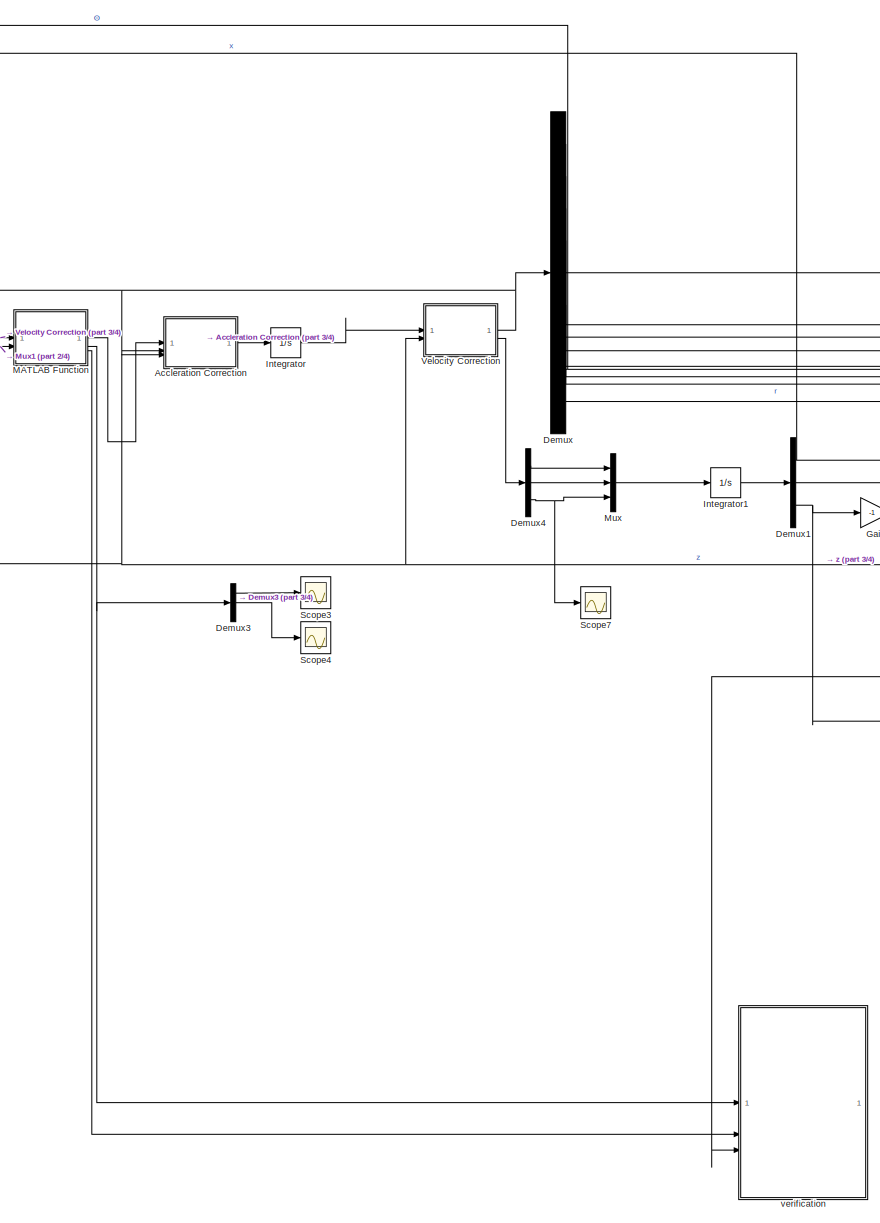
[diagram: root canvas - part 1/4, center side, full height]
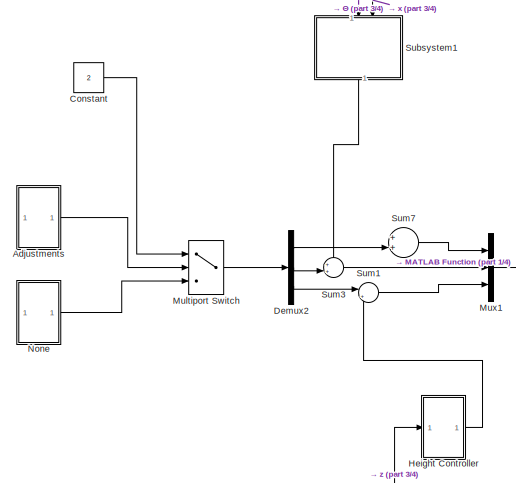
[diagram: root canvas - part 2/4, top left region]
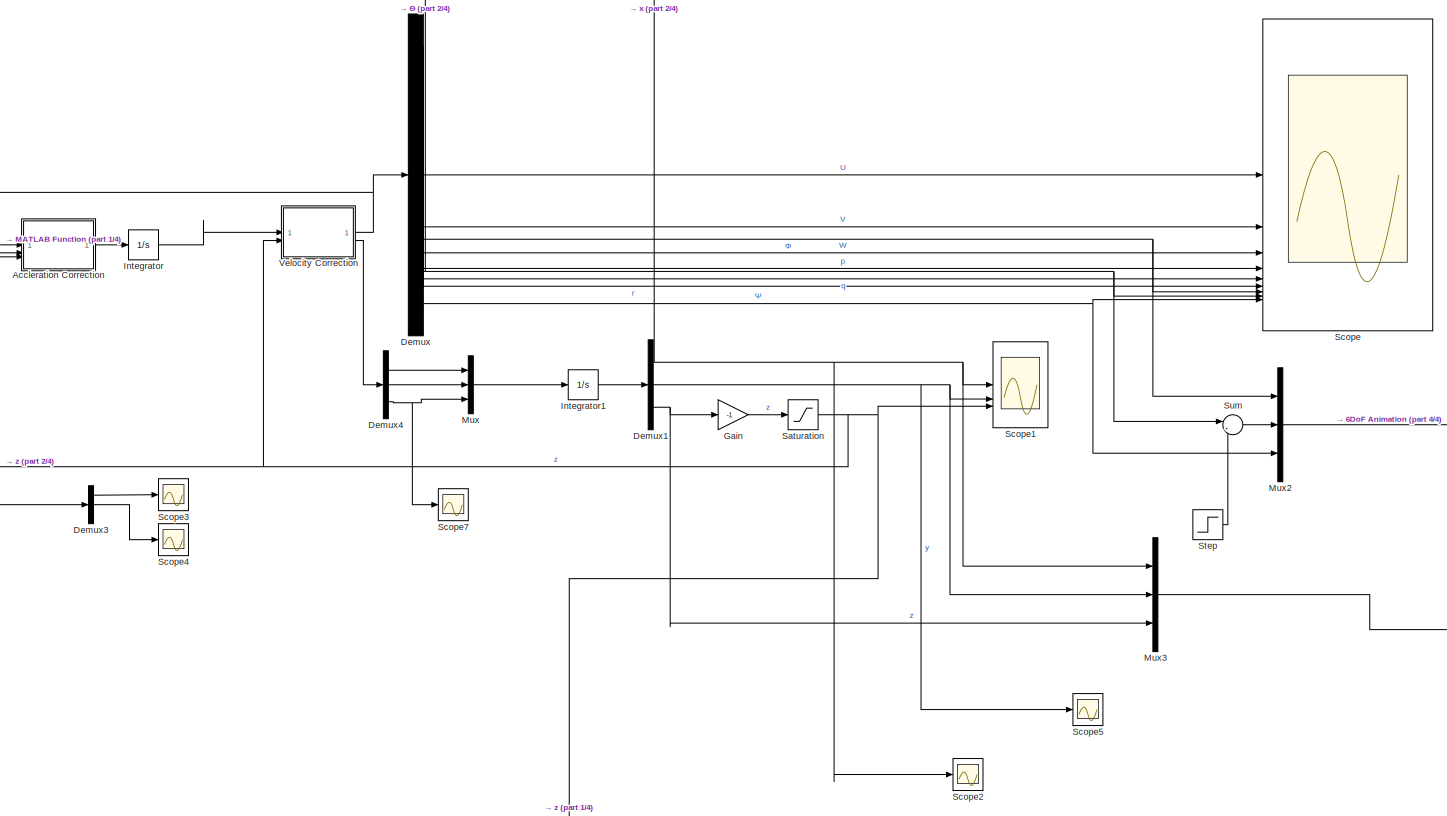
[diagram: root canvas - part 3/4, central region]
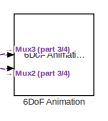
[diagram: root canvas - part 4/4, middle right region]
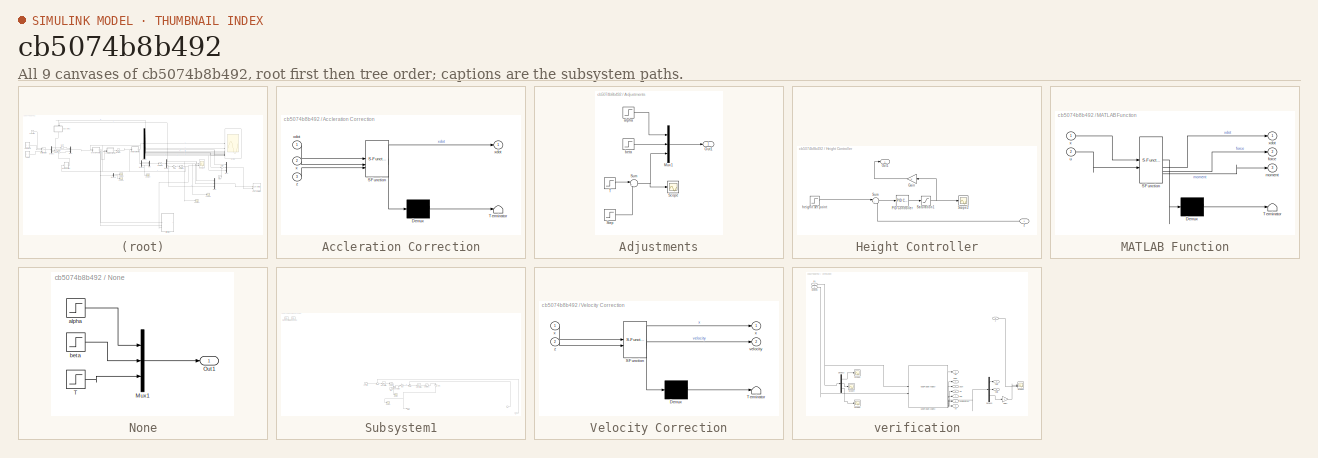
[diagram: thumbnail index - all 9 canvases of the model, root first then tree order]
MODEL slx_cb5074b8b492
KIND model
CONFIG AbsTol = auto
CONFIG EnableMultiTasking = off
CONFIG FixedStep = auto
CONFIG MaxStep = auto
CONFIG MinStep = auto
CONFIG RelTol = 1e-3
CONFIG SampleTimeConstraint = Unconstrained
CONFIG SolverName = VariableStepAuto
CONFIG StartTime = 0.0
CONFIG StopTime = 400
BLOCK [Reference] 6DoF Animation  REF=aerolibanim/6DoF Animation
  SourceBlock = aerolibanim/6DoF Animation
  SourceType = 6DoF_Animation
BLOCK [SubSystem] Accleration Correction
  ErrorFcn = Stateflow.Translate.translate
  PermitHierarchicalResolution = ExplicitOnly
  SFBlockType = MATLAB Function
  TreatAsAtomicUnit = on
BLOCK [Demux] Accleration Correction/ Demux 
  Outputs = 1
BLOCK [S-Function] Accleration Correction/ SFunction 
  EnableBusSupport = on
  FunctionName = sf_sfun
  PortCounts = [3 2]
  SFcnIsStateOwnerBlock = off
  SFunctionDeploymentMode = off
  Tag = Stateflow S-Function 1
BLOCK [Terminator] Accleration Correction/ Terminator 
BLOCK [Inport] Accleration Correction/x
  Port = 2
BLOCK [Outport] Accleration Correction/xdot
BLOCK [Inport] Accleration Correction/xdot 
BLOCK [Inport] Accleration Correction/z
  Port = 3
BLOCK [SubSystem] Adjustments
BLOCK [Mux] Adjustments/Mux1
  DisplayOption = bar
  Inputs = 3
BLOCK [Outport] Adjustments/Out1
BLOCK [Scope] Adjustments/Scope
  Floating = off
  NumInputPorts = 1
  ScopeSpecificationString = Simulink.scopes.TimeScopeBlockCfg('CurrentConfiguration', extmgr.ConfigurationSet(extmgr.Configuration('Core','General UI',true),extmgr.Configuration('Core','Source UI',true),extmgr.Configuration('Sources','WiredSimulink',true,'DataLoggingVariableName','ScopeData1'),extmgr.Configuration('Visuals','Time Domain',true,'SerializedDisplays',{struct('MinYLimReal','-187.5','MaxYLimReal','1687.5','YLabelR...<+1424ch>
BLOCK [Step] Adjustments/Step
  After = -1500
  SampleTime = 0
  Time = 5
BLOCK [Sum] Adjustments/Sum
  Inputs = |++
BLOCK [Step] Adjustments/T
  After = 1500
  SampleTime = 0
  Time = 0
BLOCK [Step] Adjustments/alpha
  After = 0
  SampleTime = 0
  Time = 0
BLOCK [Step] Adjustments/beta
  After = pi/2.001
  SampleTime = 0
  Time = 0
BLOCK [Constant] Constant
  Value = 2
BLOCK [Demux] Demux
  Outputs = 9
BLOCK [Demux] Demux1
  Outputs = 3
BLOCK [Demux] Demux2
  Outputs = 3
BLOCK [Demux] Demux3
  Outputs = 3
BLOCK [Demux] Demux4
  Outputs = 3
BLOCK [Gain] Gain
  Gain = -1
BLOCK [SubSystem] Height Controller
BLOCK [Gain] Height Controller/Gain
  NameLocation = top
BLOCK [Outport] Height Controller/Out1
BLOCK [Reference] Height Controller/PID Controller  REF=slpidlib/PID Controller
  LibrarySourceBlock = simulink/Continuous/PID Controller
  SourceBlock = slpidlib/PID Controller
  SourceType = PID 1dof
BLOCK [Saturate] Height Controller/Saturation1
  LowerLimit = 0
  UpperLimit = 1500
BLOCK [Scope] Height Controller/Scope2
  Floating = off
  NumInputPorts = 1
  ScopeSpecificationString = Simulink.scopes.TimeScopeBlockCfg('CurrentConfiguration', extmgr.ConfigurationSet(extmgr.Configuration('Core','General UI',true),extmgr.Configuration('Core','Source UI',true),extmgr.Configuration('Sources','WiredSimulink',true,'DataLoggingVariableName','ScopeData1'),extmgr.Configuration('Visuals','Time Domain',true,'SerializedDisplays',{struct('MinYLimReal','-181.875','MaxYLimReal','1686.875','YLa...<+1444ch>
BLOCK [Sum] Height Controller/Sum
  Inputs = |+-
BLOCK [Step] Height Controller/heighit set point
  After = 100
  SampleTime = 0
BLOCK [Inport] Height Controller/z
BLOCK [Integrator] Integrator
  InitialCondition = [0;0;0;0;0;0;0;0;0]
BLOCK [Integrator] Integrator1
  InitialCondition = [0;0;0]
BLOCK [SubSystem] MATLAB Function
  ErrorFcn = Stateflow.Translate.translate
  PermitHierarchicalResolution = ExplicitOnly
  SFBlockType = MATLAB Function
  TreatAsAtomicUnit = on
BLOCK [Demux] MATLAB Function/ Demux 
  Outputs = 1
BLOCK [S-Function] MATLAB Function/ SFunction 
  EnableBusSupport = on
  FunctionName = sf_sfun
  PortCounts = [2 4]
  SFcnIsStateOwnerBlock = off
  SFunctionDeploymentMode = off
  Tag = Stateflow S-Function 2
BLOCK [Terminator] MATLAB Function/ Terminator 
BLOCK [Outport] MATLAB Function/force
  Port = 2
BLOCK [Outport] MATLAB Function/moment
  Port = 3
BLOCK [Inport] MATLAB Function/u
  Port = 2
BLOCK [Inport] MATLAB Function/x
BLOCK [Outport] MATLAB Function/xdot
BLOCK [MultiPortSwitch] Multiport Switch
  InputSameDT = off
  Inputs = 2
  SaturateOnIntegerOverflow = off
BLOCK [Mux] Mux
  DisplayOption = bar
  Inputs = 3
BLOCK [Mux] Mux1
  DisplayOption = bar
  Inputs = 3
BLOCK [Mux] Mux2
  DisplayOption = bar
  Inputs = 3
BLOCK [Mux] Mux3
  DisplayOption = bar
  Inputs = 3
BLOCK [SubSystem] None
BLOCK [Mux] None/Mux1
  DisplayOption = bar
  Inputs = 3
BLOCK [Outport] None/Out1
BLOCK [Step] None/T
  After = 1500
  Commented = on
  SampleTime = 0
BLOCK [Step] None/alpha
  After = 0
  SampleTime = 0
  Time = 0
BLOCK [Step] None/beta
  After = pi/2
  Before = pi/2
  SampleTime = 0
  Time = 0
BLOCK [Saturate] Saturation
  LowerLimit = 0
  UpperLimit = 10000
BLOCK [Scope] Scope
  Floating = off
  NumInputPorts = 9
  ScopeSpecificationString = Simulink.scopes.TimeScopeBlockCfg('CurrentConfiguration', extmgr.ConfigurationSet(extmgr.Configuration('Core','General UI',true),extmgr.Configuration('Core','Source UI',true),extmgr.Configuration('Sources','WiredSimulink',true),extmgr.Configuration('Visuals','Time Domain',true,'SerializedDisplays',{struct('MinYLimReal','-0.27686','MaxYLimReal','0.66338','YLabelReal','','MinYLimMag','0.00000','MaxY...<+6943ch>
BLOCK [Scope] Scope1
  Floating = off
  NumInputPorts = 3
  ScopeSpecificationString = Simulink.scopes.TimeScopeBlockCfg('CurrentConfiguration', extmgr.ConfigurationSet(extmgr.Configuration('Core','General UI',true),extmgr.Configuration('Core','Source UI',true),extmgr.Configuration('Sources','WiredSimulink',true,'DataLoggingVariableName','ScopeData1'),extmgr.Configuration('Visuals','Time Domain',true,'SerializedDisplays',{struct('MinYLimReal','-12.95049','MaxYLimReal','116.5543','YL...<+1411ch>
BLOCK [Scope] Scope2
  Floating = off
  NumInputPorts = 1
  ScopeSpecificationString = Simulink.scopes.TimeScopeBlockCfg('CurrentConfiguration', extmgr.ConfigurationSet(extmgr.Configuration('Core','General UI',true),extmgr.Configuration('Core','Source UI',true),extmgr.Configuration('Sources','WiredSimulink',true,'DataLoggingVariableName','ScopeData2'),extmgr.Configuration('Visuals','Time Domain',true,'SerializedDisplays',{struct('MinYLimReal','-0.21001','MaxYLimReal','1.88999','YLab...<+1490ch>
BLOCK [Scope] Scope3
  Floating = off
  NumInputPorts = 1
  ScopeSpecificationString = Simulink.scopes.TimeScopeBlockCfg('CurrentConfiguration', extmgr.ConfigurationSet(extmgr.Configuration('Core','General UI',true),extmgr.Configuration('Core','Source UI',true),extmgr.Configuration('Sources','WiredSimulink',true,'DataLoggingVariableName','ScopeData1'),extmgr.Configuration('Visuals','Time Domain',true,'SerializedDisplays',{struct('MinYLimReal','-200.96987','MaxYLimReal','812.84173','...<+1449ch>
BLOCK [Scope] Scope4
  Floating = off
  NumInputPorts = 1
  ScopeSpecificationString = Simulink.scopes.TimeScopeBlockCfg('CurrentConfiguration', extmgr.ConfigurationSet(extmgr.Configuration('Core','General UI',true),extmgr.Configuration('Core','Source UI',true),extmgr.Configuration('Sources','WiredSimulink',true,'DataLoggingVariableName','ScopeData2'),extmgr.Configuration('Visuals','Time Domain',true,'SerializedDisplays',{struct('MinYLimReal','-4.3682','MaxYLimReal','3.03832','YLabe...<+1405ch>
BLOCK [Scope] Scope5
  Floating = off
  NumInputPorts = 1
  ScopeSpecificationString = Simulink.scopes.TimeScopeBlockCfg('CurrentConfiguration', extmgr.ConfigurationSet(extmgr.Configuration('Core','General UI',true),extmgr.Configuration('Core','Source UI',true),extmgr.Configuration('Sources','WiredSimulink',true,'DataLoggingVariableName','ScopeData3'),extmgr.Configuration('Visuals','Time Domain',true,'SerializedDisplays',{struct('MinYLimReal','-1.00000','MaxYLimReal','1.00000','YLab...<+1454ch>
BLOCK [Scope] Scope7
  Floating = off
  NumInputPorts = 1
  ScopeSpecificationString = Simulink.scopes.TimeScopeBlockCfg('CurrentConfiguration', extmgr.ConfigurationSet(extmgr.Configuration('Core','General UI',true),extmgr.Configuration('Core','Source UI',true),extmgr.Configuration('Sources','WiredSimulink',true,'DataLoggingVariableName','ScopeData2'),extmgr.Configuration('Visuals','Time Domain',true,'SerializedDisplays',{struct('MinYLimReal','-17.51449','MaxYLimReal','2.38359','YLa...<+1426ch>
BLOCK [Step] Step
  After = pi/2
  Before = pi/2
  SampleTime = 0
  Time = 0
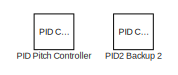
[diagram: Subsystem1 - part 1/3, top left region]
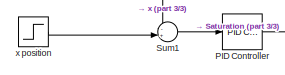
[diagram: Subsystem1 - part 2/3, bottom center region]
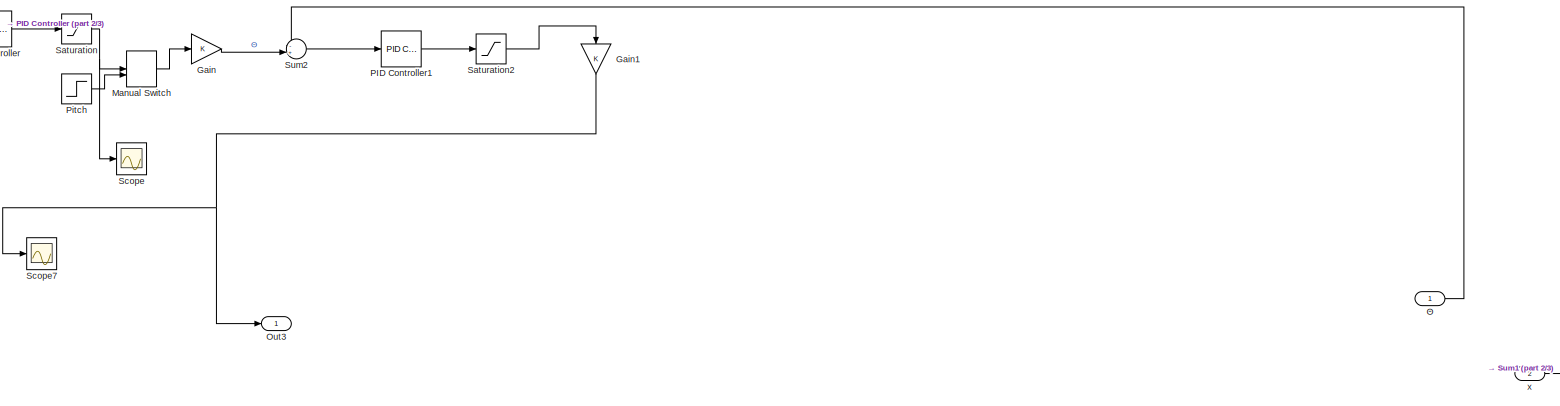
[diagram: Subsystem1 - part 3/3, bottom right region]
BLOCK [SubSystem] Subsystem1
  NameLocation = left
BLOCK [Gain] Subsystem1/Gain
BLOCK [Gain] Subsystem1/Gain1
  NameLocation = left
BLOCK [ManualSwitch] Subsystem1/Manual Switch
BLOCK [Outport] Subsystem1/Out3
BLOCK [Reference] Subsystem1/PID Controller  REF=slpidlib/PID Controller
  LibrarySourceBlock = simulink/Continuous/PID Controller
  SourceBlock = slpidlib/PID Controller
  SourceType = PID 1dof
BLOCK [Reference] Subsystem1/PID Controller1  REF=slpidlib/PID Controller
  LibrarySourceBlock = simulink/Continuous/PID Controller
  SourceBlock = slpidlib/PID Controller
  SourceType = PID 1dof
BLOCK [Reference] Subsystem1/PID Pitch Controller  REF=slpidlib/PID Controller
  LibrarySourceBlock = simulink/Continuous/PID Controller
  SourceBlock = slpidlib/PID Controller
  SourceType = PID 1dof
BLOCK [Reference] Subsystem1/PID2 Backup 2  REF=slpidlib/PID Controller
  LibrarySourceBlock = simulink/Continuous/PID Controller
  SourceBlock = slpidlib/PID Controller
  SourceType = PID 1dof
BLOCK [Step] Subsystem1/Pitch
  After = 0.1745
  SampleTime = 0
BLOCK [Saturate] Subsystem1/Saturation
  LowerLimit = -pi/4
  UpperLimit = pi/4
BLOCK [Saturate] Subsystem1/Saturation2
  LowerLimit = -pi/2
  UpperLimit = pi/2
BLOCK [Scope] Subsystem1/Scope
  Floating = off
  NumInputPorts = 1
  ScopeSpecificationString = Simulink.scopes.TimeScopeBlockCfg('CurrentConfiguration', extmgr.ConfigurationSet(extmgr.Configuration('Core','General UI',true),extmgr.Configuration('Core','Source UI',true),extmgr.Configuration('Sources','WiredSimulink',true,'DataLoggingVariableName','ScopeData1'),extmgr.Configuration('Visuals','Time Domain',true,'SerializedDisplays',{struct('MinYLimReal','-0.09832','MaxYLimReal','0.88359','YLab...<+1437ch>
BLOCK [Scope] Subsystem1/Scope7
  Floating = off
  NumInputPorts = 1
  ScopeSpecificationString = Simulink.scopes.TimeScopeBlockCfg('CurrentConfiguration', extmgr.ConfigurationSet(extmgr.Configuration('Core','General UI',true),extmgr.Configuration('Core','Source UI',true),extmgr.Configuration('Sources','WiredSimulink',true,'DataLoggingVariableName','ScopeData1'),extmgr.Configuration('Visuals','Time Domain',true,'SerializedDisplays',{struct('MinYLimReal','-0.32873','MaxYLimReal','0.08406','YLab...<+1538ch>
BLOCK [Sum] Subsystem1/Sum1
  Inputs = -+|
BLOCK [Sum] Subsystem1/Sum2
  Inputs = -+|
BLOCK [Inport] Subsystem1/x
  Port = 2
BLOCK [Step] Subsystem1/x position
  After = 1.5
  SampleTime = 0
BLOCK [Inport] Subsystem1/Θ
BLOCK [Sum] Sum
  Inputs = |++
BLOCK [Sum] Sum1
  Inputs = |++
BLOCK [Sum] Sum3
  Inputs = ++|
BLOCK [Sum] Sum7
  Inputs = ++|
BLOCK [SubSystem] Velocity Correction
  ErrorFcn = Stateflow.Translate.translate
  PermitHierarchicalResolution = ExplicitOnly
  SFBlockType = MATLAB Function
  TreatAsAtomicUnit = on
BLOCK [Demux] Velocity Correction/ Demux 
  Outputs = 1
BLOCK [S-Function] Velocity Correction/ SFunction 
  EnableBusSupport = on
  FunctionName = sf_sfun
  PortCounts = [2 3]
  SFcnIsStateOwnerBlock = off
  SFunctionDeploymentMode = off
  Tag = Stateflow S-Function 4
BLOCK [Terminator] Velocity Correction/ Terminator 
BLOCK [Outport] Velocity Correction/velocity
  Port = 2
BLOCK [Outport] Velocity Correction/x
BLOCK [Inport] Velocity Correction/x 
BLOCK [Inport] Velocity Correction/z
  Port = 2
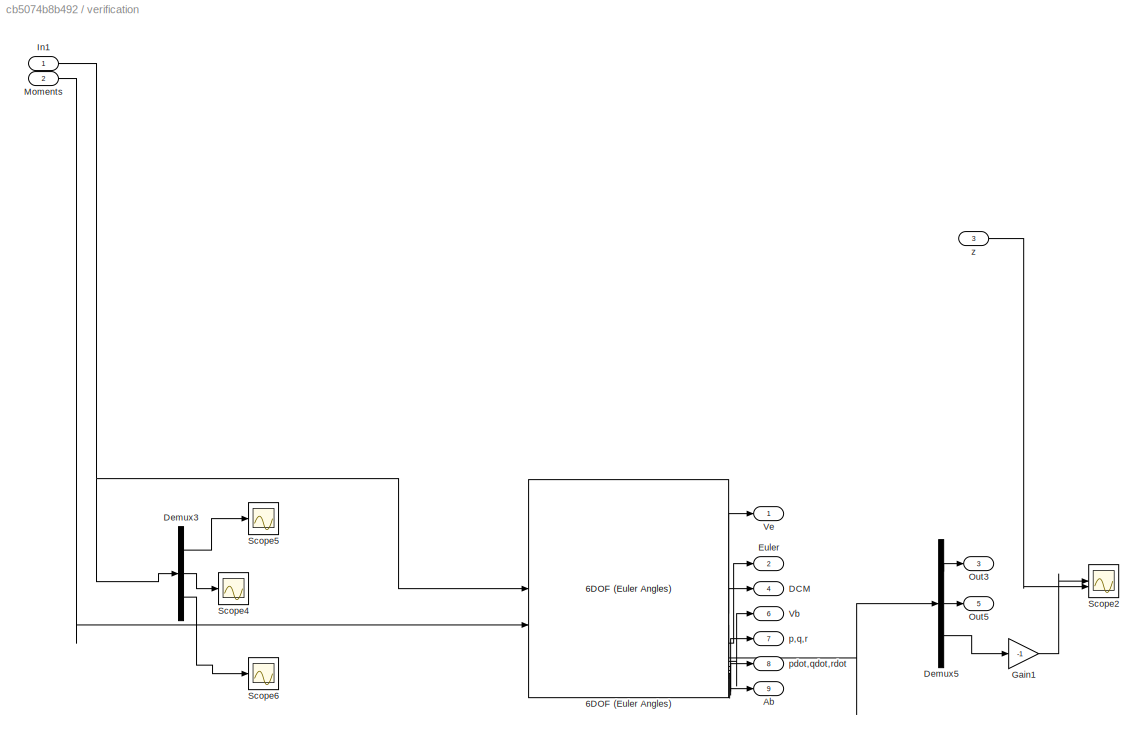
BLOCK [SubSystem] verification
BLOCK [Reference] verification/6DOF (Euler Angles)  REF=shared6dof/6DOF (Euler Angles)
  LibrarySourceBlock = aerolib6dof2/6DOF (Euler Angles)
  SourceBlock = shared6dof/6DOF (Euler Angles)
  SourceType = 6DOF EoM (Body Axis)
BLOCK [Outport] verification/Ab
  Port = 9
BLOCK [Outport] verification/DCM
  Port = 4
BLOCK [Demux] verification/Demux3
  Outputs = 3
BLOCK [Demux] verification/Demux5
  Outputs = 3
BLOCK [Outport] verification/Euler
  Port = 2
BLOCK [Gain] verification/Gain1
  Gain = -1
BLOCK [Inport] verification/In1
BLOCK [Inport] verification/Moments
  Port = 2
BLOCK [Outport] verification/Out3
  Port = 3
BLOCK [Outport] verification/Out5
  Port = 5
BLOCK [Scope] verification/Scope2
  Floating = off
  NumInputPorts = 2
  ScopeSpecificationString = Simulink.scopes.TimeScopeBlockCfg('CurrentConfiguration', extmgr.ConfigurationSet(extmgr.Configuration('Core','General UI',true),extmgr.Configuration('Core','Source UI',true),extmgr.Configuration('Sources','WiredSimulink',true,'DataLoggingVariableName','ScopeData1'),extmgr.Configuration('Visuals','Time Domain',true,'SerializedDisplays',{struct('MinYLimReal','-28.76705','MaxYLimReal','118.3117','YL...<+1411ch>
BLOCK [Scope] verification/Scope4
  Floating = off
  NumInputPorts = 1
  ScopeSpecificationString = Simulink.scopes.TimeScopeBlockCfg('CurrentConfiguration', extmgr.ConfigurationSet(extmgr.Configuration('Core','General UI',true),extmgr.Configuration('Core','Source UI',true),extmgr.Configuration('Sources','WiredSimulink',true,'DataLoggingVariableName','ScopeData1'),extmgr.Configuration('Visuals','Time Domain',true,'SerializedDisplays',{struct('MinYLimReal','-350.05982','MaxYLimReal','342.59867','...<+1423ch>
BLOCK [Scope] verification/Scope5
  Floating = off
  NumInputPorts = 1
  ScopeSpecificationString = Simulink.scopes.TimeScopeBlockCfg('CurrentConfiguration', extmgr.ConfigurationSet(extmgr.Configuration('Core','General UI',true),extmgr.Configuration('Core','Source UI',true),extmgr.Configuration('Sources','WiredSimulink',true,'DataLoggingVariableName','ScopeData2'),extmgr.Configuration('Visuals','Time Domain',true,'SerializedDisplays',{struct('MinYLimReal','-325.11306','MaxYLimReal','318.76025','...<+1423ch>
BLOCK [Scope] verification/Scope6
  Floating = off
  NumInputPorts = 1
  ScopeSpecificationString = Simulink.scopes.TimeScopeBlockCfg('CurrentConfiguration', extmgr.ConfigurationSet(extmgr.Configuration('Core','General UI',true),extmgr.Configuration('Core','Source UI',true),extmgr.Configuration('Sources','WiredSimulink',true,'DataLoggingVariableName','ScopeData3'),extmgr.Configuration('Visuals','Time Domain',true,'SerializedDisplays',{struct('MinYLimReal','-706.5','MaxYLimReal','1168.5','YLabelR...<+1400ch>
BLOCK [Outport] verification/Vb
  Port = 6
BLOCK [Outport] verification/Ve
BLOCK [Outport] verification/p,q,r
  Port = 7
BLOCK [Outport] verification/pdot,qdot,rdot
  Port = 8
BLOCK [Inport] verification/z
  Port = 3
LINE Accleration Correction:1 -> Integrator:1
LINE Adjustments/Mux1:1 -> Adjustments/Out1:1
LINE Adjustments/Step:1 -> Adjustments/Sum:2
NET Adjustments/Sum:1 -> Adjustments/Mux1:3, Adjustments/Scope:1
LINE Adjustments/T:1 -> Adjustments/Sum:1
LINE Adjustments/alpha:1 -> Adjustments/Mux1:1
LINE Adjustments/beta:1 -> Adjustments/Mux1:2
LINE Adjustments:1 -> Multiport Switch:2
LINE Constant:1 -> Multiport Switch:1
NET Demux1:1 -> Mux3:1, Scope1:1, Scope2:1, Subsystem1:2
NET Demux1:2 -> Mux3:2, Scope1:2, Scope5:1
NET Demux1:3 -> Gain:1, Mux3:3
LINE Demux2:1 -> Sum7:2
LINE Demux2:2 -> Sum3:2
LINE Demux2:3 -> Sum1:1
LINE Demux3:1 -> Scope3:1
LINE Demux3:2 -> Scope4:1
LINE Demux4:1 -> Mux:1
LINE Demux4:2 -> Mux:2
NET Demux4:3 -> Mux:3, Scope7:1
LINE Demux:1 -> Scope:1
LINE Demux:2 -> Scope:2
LINE Demux:3 -> Scope:3
LINE Demux:4 -> Scope:4
LINE Demux:5 -> Scope:5
LINE Demux:6 -> Scope:6
NET Demux:7 -> Mux2:1, Scope:7
NET Demux:8 -> Scope:8, Subsystem1:1, Sum:1
NET Demux:9 -> Mux2:3, Scope:9
LINE Gain:1 -> Saturation:1
LINE Height Controller/Gain:1 -> Height Controller/Out1:1
LINE Height Controller/PID Controller:1 -> Height Controller/Saturation1:1
NET Height Controller/Saturation1:1 -> Height Controller/Gain:1, Height Controller/Scope2:1
LINE Height Controller/Sum:1 -> Height Controller/PID Controller:1
LINE Height Controller/heighit set point:1 -> Height Controller/Sum:1
LINE Height Controller/z:1 -> Height Controller/Sum:2
LINE Height Controller:1 -> Sum1:2
LINE Integrator1:1 -> Demux1:1
LINE Integrator:1 -> Velocity Correction:1
LINE MATLAB Function:1 -> Accleration Correction:1
NET MATLAB Function:2 -> Demux3:1, verification:1
LINE MATLAB Function:3 -> verification:2
LINE Multiport Switch:1 -> Demux2:1
LINE Mux1:1 -> MATLAB Function:2
LINE Mux2:1 -> 6DoF Animation:2
LINE Mux3:1 -> 6DoF Animation:1
LINE Mux:1 -> Integrator1:1
LINE None/Mux1:1 -> None/Out1:1
LINE None/T:1 -> None/Mux1:3
LINE None/alpha:1 -> None/Mux1:1
LINE None/beta:1 -> None/Mux1:2
LINE None:1 -> Multiport Switch:3
NET Saturation:1 -> Accleration Correction:3, Height Controller:1, Scope1:3, Velocity Correction:2, verification:3
LINE Step:1 -> Sum:2
NET Subsystem1/Gain1:1 -> Subsystem1/Out3:1, Subsystem1/Scope7:1
LINE Subsystem1/Gain:1 -> Subsystem1/Sum2:2
LINE Subsystem1/Manual Switch:1 -> Subsystem1/Gain:1
LINE Subsystem1/PID Controller1:1 -> Subsystem1/Saturation2:1
LINE Subsystem1/PID Controller:1 -> Subsystem1/Saturation:1
LINE Subsystem1/Pitch:1 -> Subsystem1/Manual Switch:2
LINE Subsystem1/Saturation2:1 -> Subsystem1/Gain1:1
NET Subsystem1/Saturation:1 -> Subsystem1/Manual Switch:1, Subsystem1/Scope:1
LINE Subsystem1/Sum1:1 -> Subsystem1/PID Controller:1
LINE Subsystem1/Sum2:1 -> Subsystem1/PID Controller1:1
LINE Subsystem1/x position:1 -> Subsystem1/Sum1:2
LINE Subsystem1/x:1 -> Subsystem1/Sum1:1
LINE Subsystem1/Θ:1 -> Subsystem1/Sum2:1
LINE Subsystem1:1 -> Sum3:1
LINE Sum1:1 -> Mux1:3
LINE Sum3:1 -> Mux1:2
LINE Sum7:1 -> Mux1:1
LINE Sum:1 -> Mux2:2
NET Velocity Correction:1 -> Accleration Correction:2, Demux:1, MATLAB Function:1
LINE Velocity Correction:2 -> Demux4:1
LINE verification/6DOF (Euler Angles):1 -> verification/Ve:1
LINE verification/6DOF (Euler Angles):2 -> verification/Demux5:1
LINE verification/6DOF (Euler Angles):3 -> verification/Euler:1
LINE verification/6DOF (Euler Angles):4 -> verification/DCM:1
LINE verification/6DOF (Euler Angles):5 -> verification/Vb:1
LINE verification/6DOF (Euler Angles):6 -> verification/p,q,r:1
LINE verification/6DOF (Euler Angles):7 -> verification/pdot,qdot,rdot:1
LINE verification/6DOF (Euler Angles):8 -> verification/Ab:1
LINE verification/Demux3:1 -> verification/Scope5:1
LINE verification/Demux3:2 -> verification/Scope4:1
LINE verification/Demux3:3 -> verification/Scope6:1
LINE verification/Demux5:1 -> verification/Out3:1
LINE verification/Demux5:2 -> verification/Out5:1
LINE verification/Demux5:3 -> verification/Gain1:1
LINE verification/Gain1:1 -> verification/Scope2:1
NET verification/In1:1 -> verification/6DOF (Euler Angles):1, verification/Demux3:1
LINE verification/Moments:1 -> verification/6DOF (Euler Angles):2
LINE verification/z:1 -> verification/Scope2:2
note: NET lines group one-source signal fan-out (src -> all destinations, sorted); 1:1 wires keep LINE
CHART Accleration Correction states=1 transitions=1
  STATE_LABEL 'eML_blk_kernel()'
  STATE_LABEL 'SCRIPT:\nfunction xdot = fcn(xdot,x, z)\n\nphi=x(7);\ntheta=x(8);\npsi=x(9);\nT_etob=[cos(theta)*cos(psi),cos(theta)*sin(psi),-sin(theta);\n    sin(theta)*sin(phi)*cos(phi)-sin(psi)*cos(phi),sin(psi)*sin(theta)*sin(phi)+cos(psi)*cos(phi), sin(phi)*cos(theta);\n    sin(theta)*cos(phi)*cos(psi)+sin(psi)*sin(phi), sin(phi)*sin(theta)*cos(phi)-cos(psi)*sin(theta), cos(phi)*cos(theta)];\nzddot=xdot(end);\n\nif z ...<+140ch>'
CHART MATLAB Function states=1 transitions=1
  STATE_LABEL 'eML_blk_kernel()'
  STATE_LABEL 'SCRIPT:\nfunction [xdot,force,moment]  = fcn(x, u)\n%{\nTakes in thrust, angles of thrust, x and outputs xdot\nBody axis is defined as z being the in the direction of gravity when pitch\nis zero\n\nm - mass-kg\nI - moment of intertia - kg m^2\ncg - centre of gravity - m\nthrust position - m\nU - body axis x velocity - m/s\nV - body axis y velocity - m/s\nW - body axis z velocity - m/s\np - body axis roll rate -...<+2208ch>'
CHART Velocity Correction states=1 transitions=1
  STATE_LABEL 'eML_blk_kernel()'
  STATE_LABEL 'SCRIPT:\nfunction [x,velocity] = fcn(x, z)\n\nphi=x(7);\ntheta=x(8);\npsi=x(9);\nT_etob=[cos(theta)*cos(psi),cos(theta)*sin(psi),-sin(theta);\n    sin(theta)*sin(phi)*cos(phi)-sin(psi)*cos(phi),sin(psi)*sin(theta)*sin(phi)+cos(psi)*cos(phi), sin(phi)*cos(theta);\n    sin(theta)*cos(phi)*cos(psi)+sin(psi)*sin(phi), sin(phi)*sin(theta)*cos(phi)-cos(psi)*sin(theta), cos(phi)*cos(theta)];\n\nvelocity=T_etob\\[x(...<+140ch>'
CHART  states=0 transitions=0
CHART  states=0 transitions=0
CHART  states=0 transitions=0
